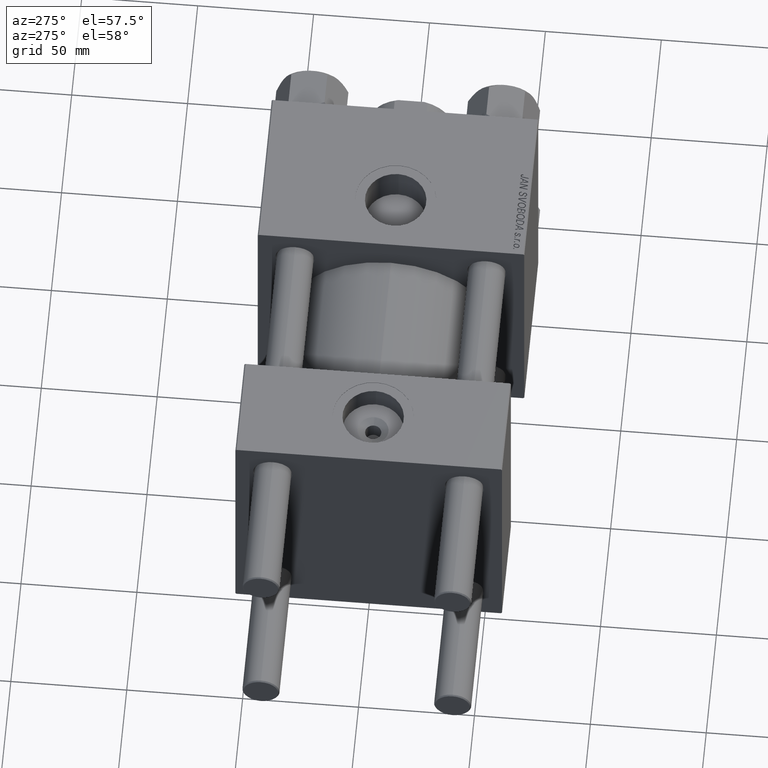
[diagram: clean part render]
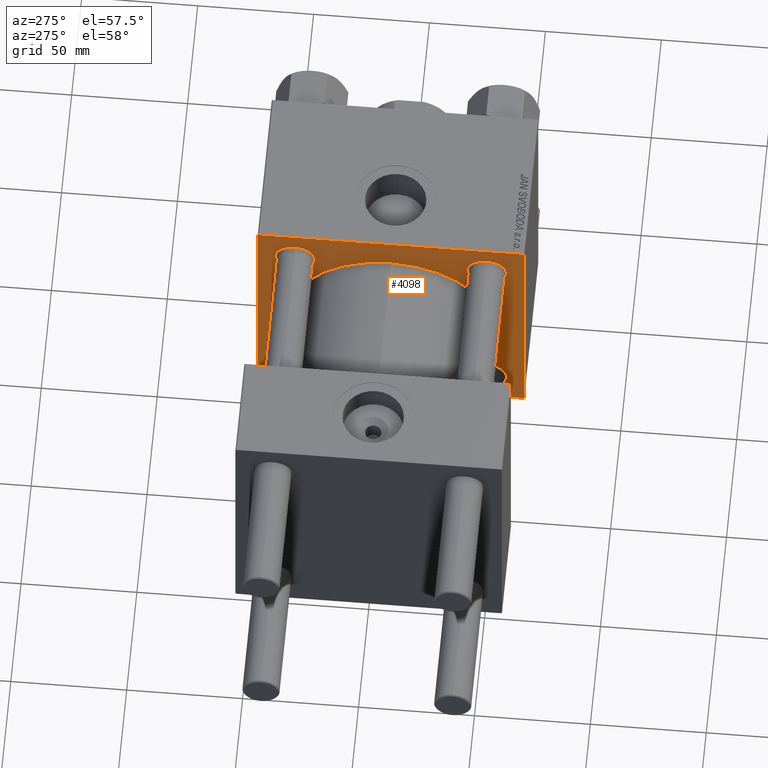
[diagram: same view with one face highlighted and labeled with its STEP entity id]
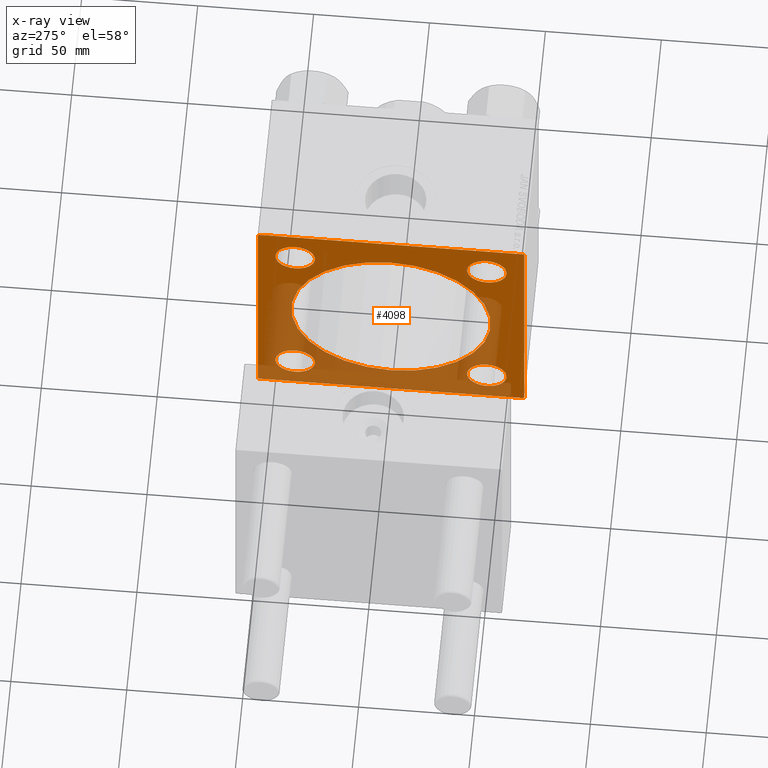
[diagram: x-ray of the same camera — body ghosted, the highlighted face saturated]
A machine part, auxiliary view. The second image highlights one B-rep face of the part: STEP entity #4098.
The next image is the same camera in x-ray: the body ghosted, the highlighted face saturated — about 43% of this face is hidden behind the body in this view.
In plain terms, the highlighted planar face has unit normal (-1, 0, 0).
Its self-contained STEP definition (entity closure, byte-faithful):
#434 = CARTESIAN_POINT ( 'NONE',  ( 110.0000000000000000, -41.34999999999998721, -32.85000000000000142 ) ) ;
#648 = EDGE_CURVE ( 'NONE', #5077, #41082, #12767, .T. ) ;
#1082 = AXIS2_PLACEMENT_3D ( 'NONE', #8563, #3551, #38433 ) ;
#1846 = CARTESIAN_POINT ( 'NONE',  ( 110.0000000000000000, -57.24999999999798916, -57.25000000000196820 ) ) ;
#2848 = VERTEX_POINT ( 'NONE', #20265 ) ;
#2876 = LINE ( 'NONE', #14083, #27177 ) ;
#3551 = DIRECTION ( 'NONE',  ( 1.000000000000000000, -0.000000000000000000, 0.000000000000000000 ) ) ;
#3976 = DIRECTION ( 'NONE',  ( 0.000000000000000000, -1.000000000000000000, -1.206764157201257291E-16 ) ) ;
#3983 = CARTESIAN_POINT ( 'NONE',  ( 110.0000000000000000, 0.000000000000000000, 0.000000000000000000 ) ) ;
#4098 = ADVANCED_FACE ( 'NONE', ( #46275, #19002, #35290, #46024, #11110, #19262 ), #23337, .T. ) ;
#4672 = CARTESIAN_POINT ( 'NONE',  ( 110.0000000000000000, -57.49999999999999289, 56.99999999999996447 ) ) ;
#4744 = DIRECTION ( 'NONE',  ( 0.000000000000000000, 0.000000000000000000, -1.000000000000000000 ) ) ;
#4793 = DIRECTION ( 'NONE',  ( 0.000000000000000000, 0.000000000000000000, 1.000000000000000000 ) ) ;
#5001 = CARTESIAN_POINT ( 'NONE',  ( 110.0000000000000000, 5.265981236333618470E-15, -43.00000000000000000 ) ) ;
#5044 = CARTESIAN_POINT ( 'NONE',  ( 110.0000000000000000, 41.34999999999999432, 49.85000000000001563 ) ) ;
#5077 = VERTEX_POINT ( 'NONE', #13976 ) ;
#5157 = DIRECTION ( 'NONE',  ( 0.000000000000000000, -0.7071067811865721087, 0.7071067811865230368 ) ) ;
#5806 = VECTOR ( 'NONE', #36948, 1000.000000000000000 ) ;
#6192 = VERTEX_POINT ( 'NONE', #5044 ) ;
#6502 = AXIS2_PLACEMENT_3D ( 'NONE', #50344, #26648, #22828 ) ;
#6971 = CARTESIAN_POINT ( 'NONE',  ( 110.0000000000000000, 41.34999999999999432, -49.85000000000001563 ) ) ;
#6993 = EDGE_CURVE ( 'NONE', #13239, #39615, #29051, .T. ) ;
#7123 = CARTESIAN_POINT ( 'NONE',  ( 110.0000000000000000, -56.99999999999998579, 57.49999999999999289 ) ) ;
#7536 = LINE ( 'NONE', #39099, #22342 ) ;
#7584 = VERTEX_POINT ( 'NONE', #33890 ) ;
#7639 = EDGE_CURVE ( 'NONE', #27747, #39576, #13140, .T. ) ;
#7745 = ORIENTED_EDGE ( 'NONE', *, *, #15693, .T. ) ;
#7797 = CIRCLE ( 'NONE', #24906, 43.00000000000000000 ) ;
#7853 = CARTESIAN_POINT ( 'NONE',  ( 110.0000000000000000, 41.34999999999999432, -41.35000000000000142 ) ) ;
#8319 = CIRCLE ( 'NONE', #45738, 8.500000000000007105 ) ;
#8377 = ORIENTED_EDGE ( 'NONE', *, *, #46530, .T. ) ;
#8563 = CARTESIAN_POINT ( 'NONE',  ( 110.0000000000000000, 41.34999999999999432, -41.35000000000000142 ) ) ;
#8635 = EDGE_CURVE ( 'NONE', #2848, #31317, #21325, .T. ) ;
#9440 = VERTEX_POINT ( 'NONE', #6971 ) ;
#9534 = DIRECTION ( 'NONE',  ( 1.000000000000000000, 0.000000000000000000, 0.000000000000000000 ) ) ;
#9884 = VECTOR ( 'NONE', #5157, 1000.000000000000000 ) ;
#10628 = CIRCLE ( 'NONE', #31766, 8.500000000000007105 ) ;
#10693 = CARTESIAN_POINT ( 'NONE',  ( 110.0000000000000000, 41.34999999999999432, -32.84999999999999432 ) ) ;
#10893 = VERTEX_POINT ( 'NONE', #10693 ) ;
#11088 = CARTESIAN_POINT ( 'NONE',  ( 110.0000000000000000, 41.34999999999999432, 41.35000000000000142 ) ) ;
#11110 = FACE_BOUND ( 'NONE', #16587, .T. ) ;
#11840 = DIRECTION ( 'NONE',  ( 1.000000000000000000, -0.000000000000000000, 0.000000000000000000 ) ) ;
#11915 = CARTESIAN_POINT ( 'NONE',  ( 110.0000000000000000, -41.34999999999998721, 41.35000000000000853 ) ) ;
#12670 = LINE ( 'NONE', #20318, #29844 ) ;
#12767 = CIRCLE ( 'NONE', #36324, 8.500000000000007105 ) ;
#12830 = EDGE_CURVE ( 'NONE', #40542, #45280, #13040, .T. ) ;
#13040 = LINE ( 'NONE', #40556, #37561 ) ;
#13140 = CIRCLE ( 'NONE', #21296, 43.00000000000000000 ) ;
#13239 = VERTEX_POINT ( 'NONE', #48891 ) ;
#13746 = EDGE_CURVE ( 'NONE', #6192, #44426, #8319, .T. ) ;
#13976 = CARTESIAN_POINT ( 'NONE',  ( 110.0000000000000000, -41.34999999999998721, 32.85000000000000142 ) ) ;
#14083 = CARTESIAN_POINT ( 'NONE',  ( 110.0000000000000000, -57.25000000000117240, 57.24999999999879208 ) ) ;
#15033 = CARTESIAN_POINT ( 'NONE',  ( 110.0000000000000000, 0.000000000000000000, 0.000000000000000000 ) ) ;
#15223 = CARTESIAN_POINT ( 'NONE',  ( 110.0000000000000000, 57.50000000000000000, -57.49999999999996447 ) ) ;
#15358 = DIRECTION ( 'NONE',  ( 1.000000000000000000, -0.000000000000000000, 0.000000000000000000 ) ) ;
#15413 = DIRECTION ( 'NONE',  ( 0.000000000000000000, 0.000000000000000000, 1.000000000000000000 ) ) ;
#15693 = EDGE_CURVE ( 'NONE', #10893, #9440, #15702, .T. ) ;
#15702 = CIRCLE ( 'NONE', #1082, 8.500000000000007105 ) ;
#16017 = CARTESIAN_POINT ( 'NONE',  ( 110.0000000000000000, -56.99999999999995737, -57.49999999999997868 ) ) ;
#16222 = VERTEX_POINT ( 'NONE', #50239 ) ;
#16587 = EDGE_LOOP ( 'NONE', ( #8377, #36233 ) ) ;
#17081 = CARTESIAN_POINT ( 'NONE',  ( 110.0000000000000000, 57.24999999999840838, 57.25000000000159162 ) ) ;
#17595 = DIRECTION ( 'NONE',  ( 0.000000000000000000, 0.000000000000000000, 1.000000000000000000 ) ) ;
#17869 = EDGE_LOOP ( 'NONE', ( #23112, #49369, #32937, #23341, #21556, #25761, #47739, #34188 ) ) ;
#18843 = EDGE_CURVE ( 'NONE', #40542, #19283, #2876, .T. ) ;
#19002 = FACE_BOUND ( 'NONE', #33394, .T. ) ;
#19047 = LINE ( 'NONE', #15223, #37764 ) ;
#19262 = FACE_OUTER_BOUND ( 'NONE', #17869, .T. ) ;
#19283 = VERTEX_POINT ( 'NONE', #7123 ) ;
#19696 = DIRECTION ( 'NONE',  ( 0.000000000000000000, 0.000000000000000000, 1.000000000000000000 ) ) ;
#20265 = CARTESIAN_POINT ( 'NONE',  ( 110.0000000000000000, -41.34999999999998721, -49.85000000000002274 ) ) ;
#20318 = CARTESIAN_POINT ( 'NONE',  ( 110.0000000000000000, 57.25000000000157030, -57.24999999999838707 ) ) ;
#20772 = ORIENTED_EDGE ( 'NONE', *, *, #648, .T. ) ;
#21296 = AXIS2_PLACEMENT_3D ( 'NONE', #15033, #9534, #45615 ) ;
#21325 = CIRCLE ( 'NONE', #22948, 8.500000000000007105 ) ;
#21556 = ORIENTED_EDGE ( 'NONE', *, *, #43736, .F. ) ;
#21879 = DIRECTION ( 'NONE',  ( 0.000000000000000000, -1.000000000000000000, -1.206764157201257291E-16 ) ) ;
#22342 = VECTOR ( 'NONE', #3976, 1000.000000000000000 ) ;
#22595 = CARTESIAN_POINT ( 'NONE',  ( 110.0000000000000000, -41.34999999999998721, 49.85000000000002274 ) ) ;
#22628 = CARTESIAN_POINT ( 'NONE',  ( 110.0000000000000000, 0.000000000000000000, 43.00000000000000000 ) ) ;
#22828 = DIRECTION ( 'NONE',  ( -0.000000000000000000, 0.000000000000000000, 1.000000000000000000 ) ) ;
#22948 = AXIS2_PLACEMENT_3D ( 'NONE', #38032, #15358, #30385 ) ;
#23112 = ORIENTED_EDGE ( 'NONE', *, *, #38819, .T. ) ;
#23291 = EDGE_CURVE ( 'NONE', #31317, #2848, #28172, .T. ) ;
#23337 = PLANE ( 'NONE',  #6502 ) ;
#23341 = ORIENTED_EDGE ( 'NONE', *, *, #18843, .T. ) ;
#23366 = CIRCLE ( 'NONE', #44559, 8.500000000000007105 ) ;
#23899 = DIRECTION ( 'NONE',  ( 1.000000000000000000, -0.000000000000000000, 0.000000000000000000 ) ) ;
#24504 = ORIENTED_EDGE ( 'NONE', *, *, #23291, .T. ) ;
#24629 = EDGE_CURVE ( 'NONE', #7584, #16222, #12670, .T. ) ;
#24906 = AXIS2_PLACEMENT_3D ( 'NONE', #3983, #39627, #4744 ) ;
#25259 = DIRECTION ( 'NONE',  ( 0.000000000000000000, 0.000000000000000000, -1.000000000000000000 ) ) ;
#25414 = CARTESIAN_POINT ( 'NONE',  ( 110.0000000000000000, -57.49999999999999289, -56.99999999999997868 ) ) ;
#25730 = DIRECTION ( 'NONE',  ( 1.000000000000000000, -0.000000000000000000, 0.000000000000000000 ) ) ;
#25761 = ORIENTED_EDGE ( 'NONE', *, *, #6993, .T. ) ;
#26317 = CARTESIAN_POINT ( 'NONE',  ( 110.0000000000000000, -41.34999999999998721, 41.35000000000000853 ) ) ;
#26578 = EDGE_LOOP ( 'NONE', ( #40867, #20772 ) ) ;
#26648 = DIRECTION ( 'NONE',  ( -1.000000000000000000, 0.000000000000000000, -0.000000000000000000 ) ) ;
#27177 = VECTOR ( 'NONE', #49729, 1000.000000000000000 ) ;
#27392 = VERTEX_POINT ( 'NONE', #16017 ) ;
#27662 = LINE ( 'NONE', #27919, #35317 ) ;
#27747 = VERTEX_POINT ( 'NONE', #5001 ) ;
#27840 = AXIS2_PLACEMENT_3D ( 'NONE', #7853, #23899, #43005 ) ;
#27919 = CARTESIAN_POINT ( 'NONE',  ( 110.0000000000000000, 57.50000000000000000, 57.50000000000000711 ) ) ;
#28172 = CIRCLE ( 'NONE', #40410, 8.500000000000007105 ) ;
#29051 = LINE ( 'NONE', #17081, #5806 ) ;
#29844 = VECTOR ( 'NONE', #32525, 1000.000000000000000 ) ;
#29850 = EDGE_CURVE ( 'NONE', #44426, #6192, #10628, .T. ) ;
#30385 = DIRECTION ( 'NONE',  ( 0.000000000000000000, 0.000000000000000000, 1.000000000000000000 ) ) ;
#31317 = VERTEX_POINT ( 'NONE', #434 ) ;
#31766 = AXIS2_PLACEMENT_3D ( 'NONE', #38221, #34149, #49703 ) ;
#32433 = EDGE_CURVE ( 'NONE', #27392, #45280, #40045, .T. ) ;
#32525 = DIRECTION ( 'NONE',  ( -0.000000000000000000, -0.7071067811865279218, -0.7071067811865672237 ) ) ;
#32553 = CARTESIAN_POINT ( 'NONE',  ( 110.0000000000000000, 41.34999999999999432, 32.84999999999999432 ) ) ;
#32703 = ORIENTED_EDGE ( 'NONE', *, *, #33738, .T. ) ;
#32937 = ORIENTED_EDGE ( 'NONE', *, *, #12830, .F. ) ;
#33394 = EDGE_LOOP ( 'NONE', ( #47951, #47189 ) ) ;
#33708 = ORIENTED_EDGE ( 'NONE', *, *, #8635, .T. ) ;
#33738 = EDGE_CURVE ( 'NONE', #9440, #10893, #39213, .T. ) ;
#33890 = CARTESIAN_POINT ( 'NONE',  ( 110.0000000000000000, 57.50000000000000000, -56.99999999999994316 ) ) ;
#34149 = DIRECTION ( 'NONE',  ( 1.000000000000000000, -0.000000000000000000, 0.000000000000000000 ) ) ;
#34188 = ORIENTED_EDGE ( 'NONE', *, *, #24629, .T. ) ;
#34837 = CARTESIAN_POINT ( 'NONE',  ( 110.0000000000000000, 57.50000000000000000, 57.00000000000000711 ) ) ;
#35290 = FACE_BOUND ( 'NONE', #40244, .T. ) ;
#35317 = VECTOR ( 'NONE', #40155, 1000.000000000000000 ) ;
#36233 = ORIENTED_EDGE ( 'NONE', *, *, #7639, .T. ) ;
#36324 = AXIS2_PLACEMENT_3D ( 'NONE', #11915, #46827, #4793 ) ;
#36948 = DIRECTION ( 'NONE',  ( 0.000000000000000000, 0.7071067811865672237, -0.7071067811865279218 ) ) ;
#37561 = VECTOR ( 'NONE', #25259, 1000.000000000000000 ) ;
#37764 = VECTOR ( 'NONE', #21879, 1000.000000000000000 ) ;
#38032 = CARTESIAN_POINT ( 'NONE',  ( 110.0000000000000000, -41.34999999999998721, -41.35000000000000853 ) ) ;
#38221 = CARTESIAN_POINT ( 'NONE',  ( 110.0000000000000000, 41.34999999999999432, 41.35000000000000142 ) ) ;
#38433 = DIRECTION ( 'NONE',  ( 0.000000000000000000, 0.000000000000000000, 1.000000000000000000 ) ) ;
#38819 = EDGE_CURVE ( 'NONE', #16222, #27392, #19047, .T. ) ;
#39099 = CARTESIAN_POINT ( 'NONE',  ( 110.0000000000000000, 57.50000000000000000, 57.50000000000000711 ) ) ;
#39213 = CIRCLE ( 'NONE', #27840, 8.500000000000007105 ) ;
#39576 = VERTEX_POINT ( 'NONE', #22628 ) ;
#39615 = VERTEX_POINT ( 'NONE', #34837 ) ;
#39627 = DIRECTION ( 'NONE',  ( 1.000000000000000000, 0.000000000000000000, 0.000000000000000000 ) ) ;
#40045 = LINE ( 'NONE', #1846, #9884 ) ;
#40155 = DIRECTION ( 'NONE',  ( 0.000000000000000000, 0.000000000000000000, -1.000000000000000000 ) ) ;
#40244 = EDGE_LOOP ( 'NONE', ( #7745, #32703 ) ) ;
#40410 = AXIS2_PLACEMENT_3D ( 'NONE', #45354, #25730, #17595 ) ;
#40542 = VERTEX_POINT ( 'NONE', #4672 ) ;
#40556 = CARTESIAN_POINT ( 'NONE',  ( 110.0000000000000000, -57.49999999999999289, 57.49999999999999289 ) ) ;
#40867 = ORIENTED_EDGE ( 'NONE', *, *, #49675, .T. ) ;
#41082 = VERTEX_POINT ( 'NONE', #22595 ) ;
#42160 = EDGE_CURVE ( 'NONE', #39615, #7584, #27662, .T. ) ;
#43005 = DIRECTION ( 'NONE',  ( 0.000000000000000000, 0.000000000000000000, 1.000000000000000000 ) ) ;
#43736 = EDGE_CURVE ( 'NONE', #13239, #19283, #7536, .T. ) ;
#44426 = VERTEX_POINT ( 'NONE', #32553 ) ;
#44559 = AXIS2_PLACEMENT_3D ( 'NONE', #26317, #46452, #19696 ) ;
#45280 = VERTEX_POINT ( 'NONE', #25414 ) ;
#45354 = CARTESIAN_POINT ( 'NONE',  ( 110.0000000000000000, -41.34999999999998721, -41.35000000000000853 ) ) ;
#45615 = DIRECTION ( 'NONE',  ( 0.000000000000000000, 0.000000000000000000, -1.000000000000000000 ) ) ;
#45738 = AXIS2_PLACEMENT_3D ( 'NONE', #11088, #11840, #15413 ) ;
#46024 = FACE_BOUND ( 'NONE', #48302, .T. ) ;
#46275 = FACE_BOUND ( 'NONE', #26578, .T. ) ;
#46452 = DIRECTION ( 'NONE',  ( 1.000000000000000000, -0.000000000000000000, 0.000000000000000000 ) ) ;
#46530 = EDGE_CURVE ( 'NONE', #39576, #27747, #7797, .T. ) ;
#46827 = DIRECTION ( 'NONE',  ( 1.000000000000000000, -0.000000000000000000, 0.000000000000000000 ) ) ;
#47189 = ORIENTED_EDGE ( 'NONE', *, *, #29850, .T. ) ;
#47739 = ORIENTED_EDGE ( 'NONE', *, *, #42160, .T. ) ;
#47951 = ORIENTED_EDGE ( 'NONE', *, *, #13746, .T. ) ;
#48302 = EDGE_LOOP ( 'NONE', ( #24504, #33708 ) ) ;
#48891 = CARTESIAN_POINT ( 'NONE',  ( 110.0000000000000000, 56.99999999999997158, 57.50000000000000711 ) ) ;
#49369 = ORIENTED_EDGE ( 'NONE', *, *, #32433, .T. ) ;
#49675 = EDGE_CURVE ( 'NONE', #41082, #5077, #23366, .T. ) ;
#49703 = DIRECTION ( 'NONE',  ( 0.000000000000000000, 0.000000000000000000, 1.000000000000000000 ) ) ;
#49729 = DIRECTION ( 'NONE',  ( -0.000000000000000000, 0.7071067811865328068, 0.7071067811865622277 ) ) ;
#50239 = CARTESIAN_POINT ( 'NONE',  ( 110.0000000000000000, 57.00000000000000000, -57.49999999999996447 ) ) ;
#50344 = CARTESIAN_POINT ( 'NONE',  ( 110.0000000000000000, 0.000000000000000000, 0.000000000000000000 ) ) ;